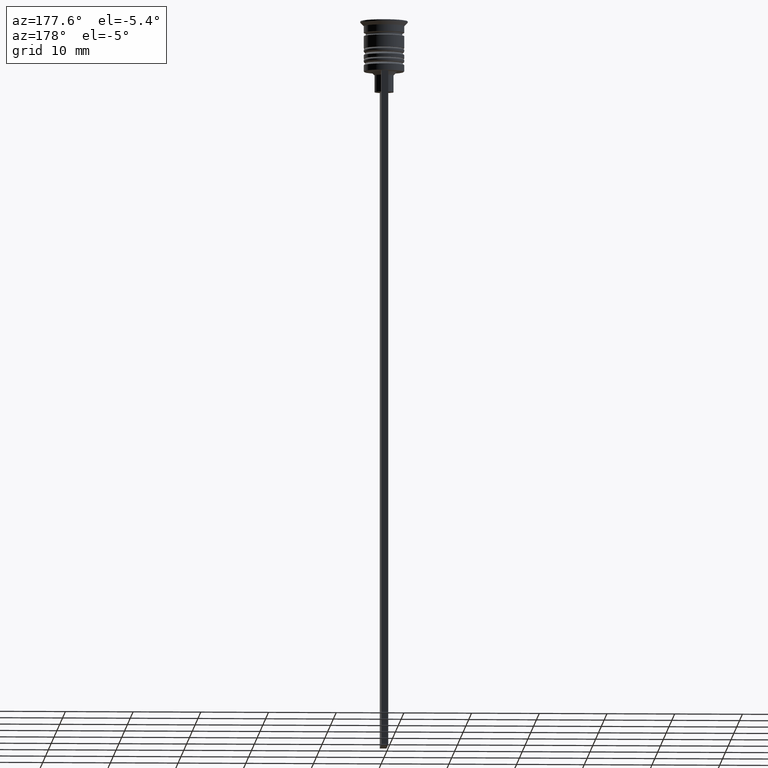
[diagram: clean part render]
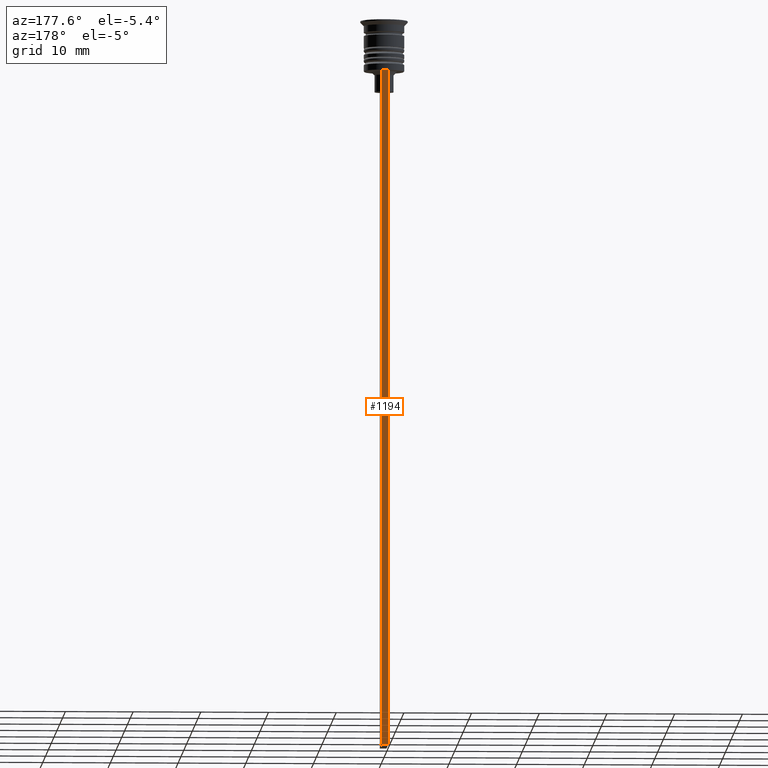
[diagram: same view with one face highlighted and labeled with its STEP entity id]
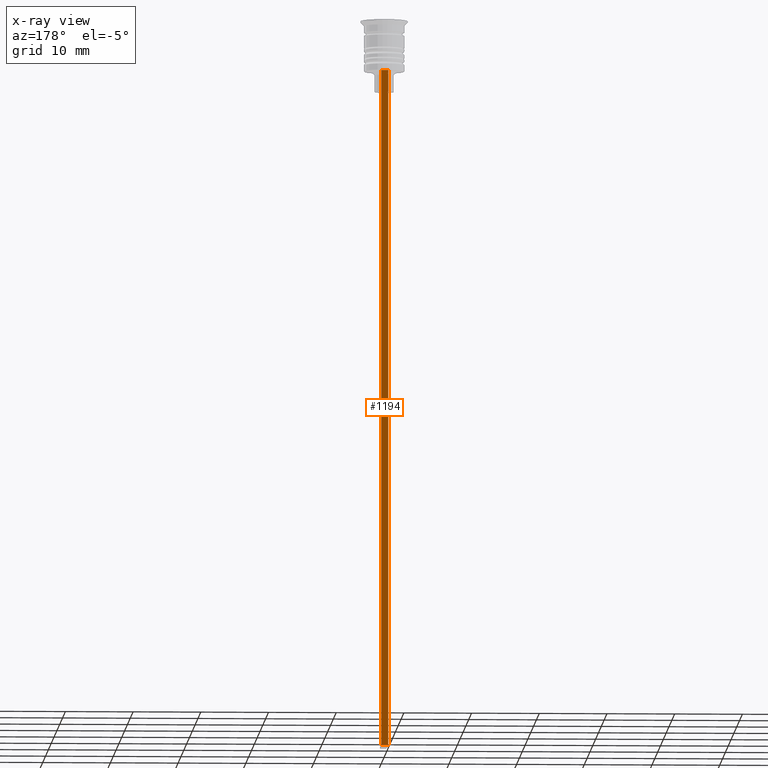
[diagram: x-ray of the same camera — body ghosted, the highlighted face saturated]
A machine part, auxiliary view. The second image highlights one B-rep face of the part: STEP entity #1194.
The next image is the same camera in x-ray: the body ghosted, the highlighted face saturated — about 0% of this face is hidden behind the body in this view.
In plain terms, the highlighted planar face has unit normal (0, -1, -0).
Its self-contained STEP definition (entity closure, byte-faithful):
#70 = DIRECTION ( 'NONE',  ( 0.000000000000000000, 0.000000000000000000, -1.000000000000000000 ) ) ;
#263 = EDGE_CURVE ( 'NONE', #1745, #682, #2138, .T. ) ;
#366 = CARTESIAN_POINT ( 'NONE',  ( -0.5000000000000001110, 3.000000000000000000, -7.500000000000000000 ) ) ;
#367 = CARTESIAN_POINT ( 'NONE',  ( -0.5000000000000001110, 3.000000000000000000, -1.417237469701779329 ) ) ;
#373 = FACE_OUTER_BOUND ( 'NONE', #1605, .T. ) ;
#428 = ORIENTED_EDGE ( 'NONE', *, *, #263, .F. ) ;
#449 = CARTESIAN_POINT ( 'NONE',  ( 0.4999999999999998890, 3.000000000000000000, -107.5000000000000000 ) ) ;
#458 = CARTESIAN_POINT ( 'NONE',  ( 0.4999999999999998890, 3.000000000000000000, -7.500000000000000000 ) ) ;
#485 = VECTOR ( 'NONE', #1224, 1000.000000000000000 ) ;
#502 = EDGE_CURVE ( 'NONE', #1984, #2180, #986, .T. ) ;
#540 = DIRECTION ( 'NONE',  ( 0.000000000000000000, 0.000000000000000000, -1.000000000000000000 ) ) ;
#682 = VERTEX_POINT ( 'NONE', #2292 ) ;
#726 = DIRECTION ( 'NONE',  ( -1.000000000000000000, 0.000000000000000000, 0.000000000000000000 ) ) ;
#768 = PLANE ( 'NONE',  #1915 ) ;
#794 = VECTOR ( 'NONE', #70, 1000.000000000000000 ) ;
#914 = ORIENTED_EDGE ( 'NONE', *, *, #502, .T. ) ;
#915 = CARTESIAN_POINT ( 'NONE',  ( 0.4999999999999998890, 3.000000000000000000, -107.5000000000000000 ) ) ;
#986 = LINE ( 'NONE', #1851, #794 ) ;
#1024 = ORIENTED_EDGE ( 'NONE', *, *, #1268, .T. ) ;
#1061 = DIRECTION ( 'NONE',  ( 0.000000000000000000, 0.000000000000000000, -1.000000000000000000 ) ) ;
#1085 = LINE ( 'NONE', #915, #2257 ) ;
#1194 = ADVANCED_FACE ( 'NONE', ( #373 ), #768, .F. ) ;
#1224 = DIRECTION ( 'NONE',  ( 1.000000000000000000, 0.000000000000000000, 0.000000000000000000 ) ) ;
#1268 = EDGE_CURVE ( 'NONE', #2180, #682, #1085, .T. ) ;
#1411 = CARTESIAN_POINT ( 'NONE',  ( 0.4999999999999998890, 3.000000000000000000, -1.417237469701779329 ) ) ;
#1605 = EDGE_LOOP ( 'NONE', ( #428, #2325, #914, #1024 ) ) ;
#1652 = CARTESIAN_POINT ( 'NONE',  ( 0.4999999999999998890, 3.000000000000000000, -7.500000000000000000 ) ) ;
#1745 = VERTEX_POINT ( 'NONE', #366 ) ;
#1822 = EDGE_CURVE ( 'NONE', #1745, #1984, #2072, .T. ) ;
#1851 = CARTESIAN_POINT ( 'NONE',  ( 0.4999999999999998890, 3.000000000000000000, -1.417237469701779329 ) ) ;
#1915 = AXIS2_PLACEMENT_3D ( 'NONE', #1411, #2324, #540 ) ;
#1984 = VERTEX_POINT ( 'NONE', #1652 ) ;
#2072 = LINE ( 'NONE', #458, #485 ) ;
#2126 = VECTOR ( 'NONE', #1061, 1000.000000000000000 ) ;
#2138 = LINE ( 'NONE', #367, #2126 ) ;
#2180 = VERTEX_POINT ( 'NONE', #449 ) ;
#2257 = VECTOR ( 'NONE', #726, 1000.000000000000000 ) ;
#2292 = CARTESIAN_POINT ( 'NONE',  ( -0.5000000000000001110, 3.000000000000000000, -107.5000000000000000 ) ) ;
#2324 = DIRECTION ( 'NONE',  ( 0.000000000000000000, -1.000000000000000000, -0.000000000000000000 ) ) ;
#2325 = ORIENTED_EDGE ( 'NONE', *, *, #1822, .T. ) ;